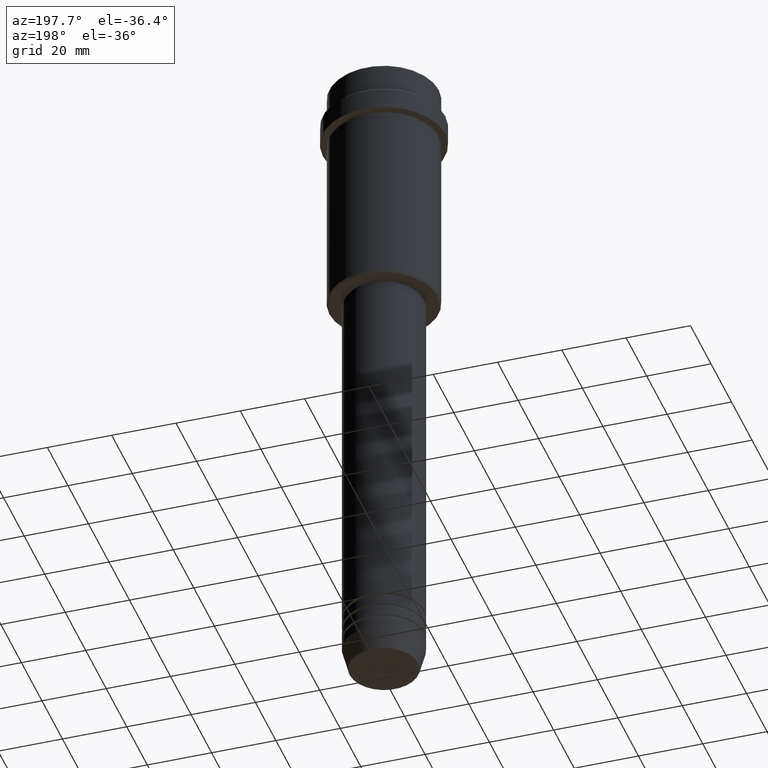
[diagram: clean part render]
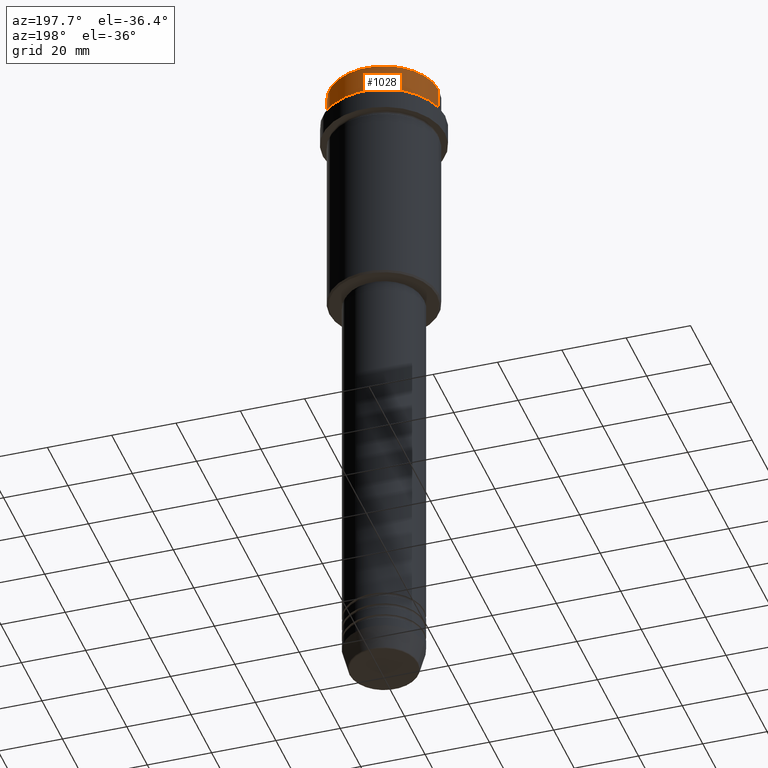
[diagram: same view with one face highlighted and labeled with its STEP entity id]
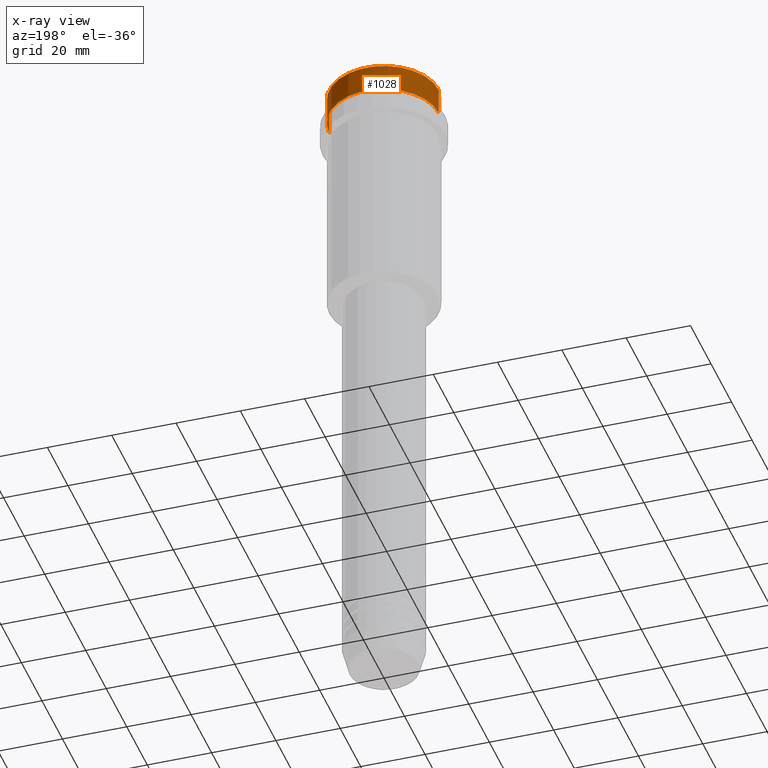
[diagram: x-ray of the same camera — body ghosted, the highlighted face saturated]
A machine part, auxiliary view. The second image highlights one B-rep face of the part: STEP entity #1028.
The next image is the same camera in x-ray: the body ghosted, the highlighted face saturated — about 0% of this face is hidden behind the body in this view.
In plain terms, the highlighted cylindrical surface (partial cylindrical patch) has radius 17 mm, axis along (-0, -0, 1).
Its self-contained STEP definition (entity closure, byte-faithful):
#13 = VERTEX_POINT ( 'NONE', #1013 ) ;
#31 = VECTOR ( 'NONE', #294, 1000.000000000000000 ) ;
#91 = EDGE_CURVE ( 'NONE', #225, #13, #496, .T. ) ;
#102 = DIRECTION ( 'NONE',  ( 1.000000000000000000, 0.000000000000000000, 0.000000000000000000 ) ) ;
#113 = ORIENTED_EDGE ( 'NONE', *, *, #167, .T. ) ;
#131 = CIRCLE ( 'NONE', #536, 16.99999999999997513 ) ;
#167 = EDGE_CURVE ( 'NONE', #925, #13, #422, .T. ) ;
#225 = VERTEX_POINT ( 'NONE', #883 ) ;
#282 = FACE_OUTER_BOUND ( 'NONE', #861, .T. ) ;
#294 = DIRECTION ( 'NONE',  ( -0.000000000000000000, -0.000000000000000000, 1.000000000000000000 ) ) ;
#299 = CYLINDRICAL_SURFACE ( 'NONE', #669, 16.99999999999998579 ) ;
#396 = ORIENTED_EDGE ( 'NONE', *, *, #91, .F. ) ;
#422 = CIRCLE ( 'NONE', #1208, 16.99999999999998579 ) ;
#441 = DIRECTION ( 'NONE',  ( 1.000000000000000000, 0.000000000000000000, 0.000000000000000000 ) ) ;
#496 = LINE ( 'NONE', #827, #31 ) ;
#536 = AXIS2_PLACEMENT_3D ( 'NONE', #1170, #1200, #102 ) ;
#537 = DIRECTION ( 'NONE',  ( -0.000000000000000000, -0.000000000000000000, 1.000000000000000000 ) ) ;
#669 = AXIS2_PLACEMENT_3D ( 'NONE', #739, #537, #1412 ) ;
#708 = EDGE_CURVE ( 'NONE', #963, #925, #932, .T. ) ;
#709 = VECTOR ( 'NONE', #1248, 1000.000000000000000 ) ;
#712 = CARTESIAN_POINT ( 'NONE',  ( -16.99999999999997513, 2.081899558550498307E-15, -8.999999999999998224 ) ) ;
#739 = CARTESIAN_POINT ( 'NONE',  ( 0.000000000000000000, 0.000000000000000000, 0.000000000000000000 ) ) ;
#774 = CARTESIAN_POINT ( 'NONE',  ( 0.000000000000000000, 0.000000000000000000, -0.5000000000000108802 ) ) ;
#791 = DIRECTION ( 'NONE',  ( 0.000000000000000000, 0.000000000000000000, -1.000000000000000000 ) ) ;
#827 = CARTESIAN_POINT ( 'NONE',  ( 16.99999999999998579, 0.000000000000000000, 0.000000000000000000 ) ) ;
#861 = EDGE_LOOP ( 'NONE', ( #969, #881, #113, #396 ) ) ;
#881 = ORIENTED_EDGE ( 'NONE', *, *, #708, .T. ) ;
#883 = CARTESIAN_POINT ( 'NONE',  ( 16.99999999999997513, 0.000000000000000000, -8.999999999999998224 ) ) ;
#925 = VERTEX_POINT ( 'NONE', #1199 ) ;
#932 = LINE ( 'NONE', #935, #709 ) ;
#935 = CARTESIAN_POINT ( 'NONE',  ( -16.99999999999998579, 2.081899558550499096E-15, 0.000000000000000000 ) ) ;
#963 = VERTEX_POINT ( 'NONE', #712 ) ;
#969 = ORIENTED_EDGE ( 'NONE', *, *, #1085, .T. ) ;
#1013 = CARTESIAN_POINT ( 'NONE',  ( 16.99999999999998579, 0.000000000000000000, -0.5000000000000108802 ) ) ;
#1028 = ADVANCED_FACE ( 'NONE', ( #282 ), #299, .T. ) ;
#1085 = EDGE_CURVE ( 'NONE', #225, #963, #131, .T. ) ;
#1170 = CARTESIAN_POINT ( 'NONE',  ( 0.000000000000000000, 0.000000000000000000, -8.999999999999998224 ) ) ;
#1199 = CARTESIAN_POINT ( 'NONE',  ( -16.99999999999998579, 2.081899558550499096E-15, -0.5000000000000108802 ) ) ;
#1200 = DIRECTION ( 'NONE',  ( -0.000000000000000000, -0.000000000000000000, 1.000000000000000000 ) ) ;
#1208 = AXIS2_PLACEMENT_3D ( 'NONE', #774, #791, #441 ) ;
#1248 = DIRECTION ( 'NONE',  ( -0.000000000000000000, -0.000000000000000000, 1.000000000000000000 ) ) ;
#1412 = DIRECTION ( 'NONE',  ( 1.000000000000000000, 0.000000000000000000, 0.000000000000000000 ) ) ;